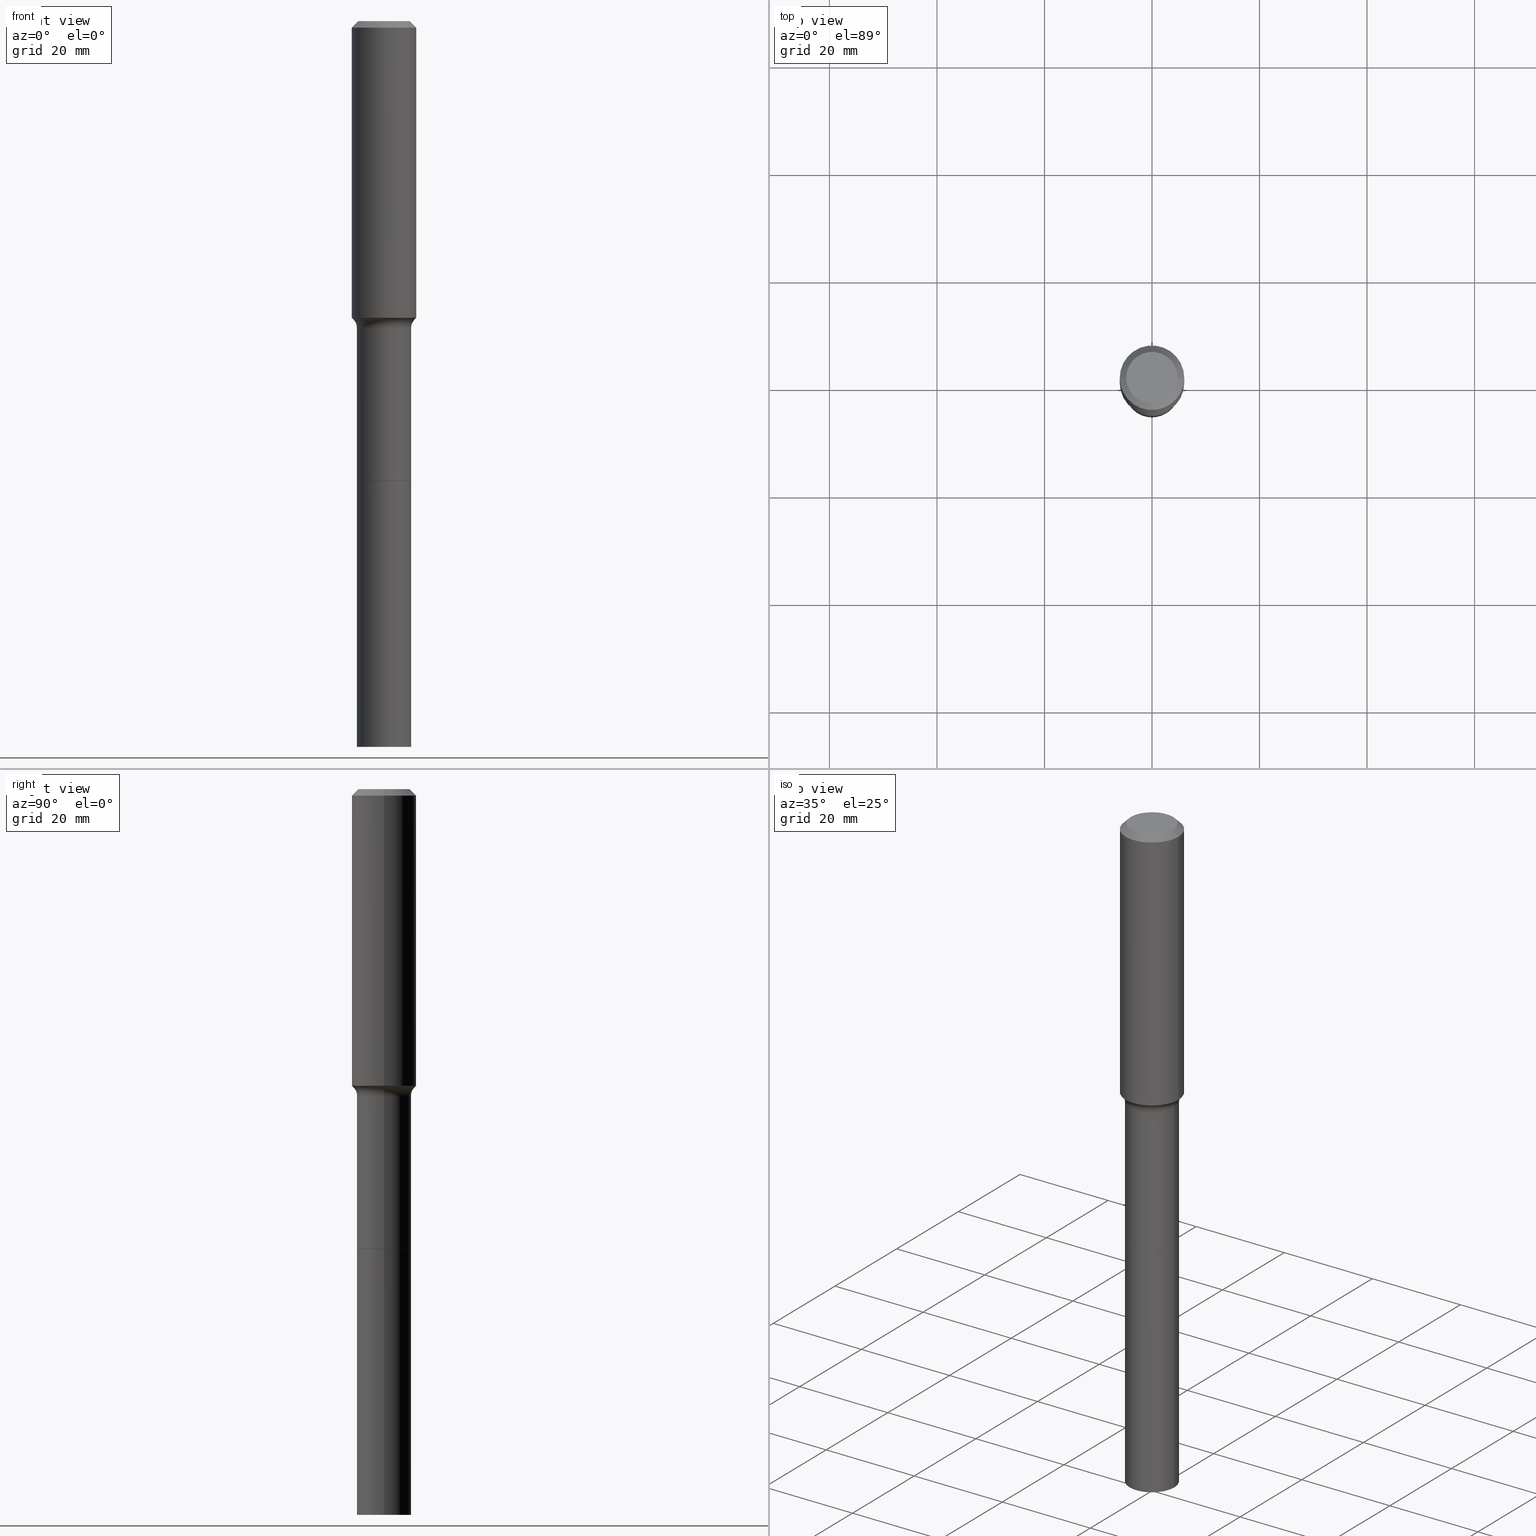
[diagram: canonical four-view strip — front | top / right | iso, engineering-drawing reading convention]
A machine part, canonical four-view strip (front | top / right | iso — engineering-drawing reading convention). The complete STEP part file that produces these views, byte-faithful:
ISO-10303-21;
HEADER;
FILE_DESCRIPTION (( 'STEP AP203' ),
    '1' );
FILE_NAME ('67889.STEP',
    '2025-04-01T15:32:01',
    ( '' ),
    ( '' ),
    'SwSTEP 2.0',
    'SolidWorks 2024',
    '' );
FILE_SCHEMA (( 'CONFIG_CONTROL_DESIGN' ));
ENDSEC;

DATA;
#1 = EDGE_CURVE ( 'NONE', #453, #517, #196, .T. ) ;
#2 = VERTEX_POINT ( 'NONE', #18 ) ;
#3 = AXIS2_PLACEMENT_3D ( 'NONE', #142, #73, #233 ) ;
#4 = AXIS2_PLACEMENT_3D ( 'NONE', #468, #275, #71 ) ;
#5 = ORIENTED_EDGE ( 'NONE', *, *, #1, .T. ) ;
#6 = DIRECTION ( 'NONE',  ( -2.445468806185136597E-29, 3.491481338843145583E-15, 1.000000000000000000 ) ) ;
#7 = VERTEX_POINT ( 'NONE', #296 ) ;
#8 = DIRECTION ( 'NONE',  ( -2.445468806185136597E-29, 3.491481338843145583E-15, 1.000000000000000000 ) ) ;
#9 = DIRECTION ( 'NONE',  ( 1.000000000000000000, -6.982962677686269866E-15, 0.000000000000000000 ) ) ;
#10 = EDGE_LOOP ( 'NONE', ( #52, #518, #363, #323 ) ) ;
#11 = APPROVAL_DATE_TIME ( #167, #202 ) ;
#12 = EDGE_CURVE ( 'NONE', #443, #69, #98, .T. ) ;
#13 = FACE_OUTER_BOUND ( 'NONE', #121, .T. ) ;
#14 = VECTOR ( 'NONE', #498, 39.37007874015748143 ) ;
#15 = ORIENTED_EDGE ( 'NONE', *, *, #111, .T. ) ;
#16 = DIRECTION ( 'NONE',  ( -2.445468806185136597E-29, 3.491481338843145583E-15, 1.000000000000000000 ) ) ;
#17 = ADVANCED_FACE ( 'NONE', ( #336 ), #254, .T. ) ;
#18 = CARTESIAN_POINT ( 'NONE',  ( -0.1983000000000000040, -1.034067071435963894E-14, -3.366000000000000103 ) ) ;
#19 = LINE ( 'NONE', #416, #23 ) ;
#20 = DIRECTION ( 'NONE',  ( 1.000000000000000000, -6.982962677686269077E-15, 0.000000000000000000 ) ) ;
#21 = CC_DESIGN_PERSON_AND_ORGANIZATION_ASSIGNMENT ( #208, #266, ( #119 ) ) ;
#22 = ORIENTED_EDGE ( 'NONE', *, *, #312, .F. ) ;
#23 = VECTOR ( 'NONE', #255, 39.37007874015748143 ) ;
#24 = ORIENTED_EDGE ( 'NONE', *, *, #49, .T. ) ;
#25 = APPROVAL_ROLE ( '' ) ;
#26 = AXIS2_PLACEMENT_3D ( 'NONE', #415, #378, #307 ) ;
#27 = CARTESIAN_POINT ( 'NONE',  ( -0.2202917038704663433, -6.079122661247881296E-15, -2.189440131195000472 ) ) ;
#28 = CARTESIAN_POINT ( 'NONE',  ( 5.487632001079447088E-29, -7.834884124364020406E-15, -2.244000000000000217 ) ) ;
#29 = LENGTH_MEASURE_WITH_UNIT ( LENGTH_MEASURE( 0.02539999999999999897 ), #464 );
#30 = CARTESIAN_POINT ( 'NONE',  ( 8.231448001619171193E-29, -1.175232618654602903E-14, -3.366000000000000103 ) ) ;
#31 = DATE_AND_TIME ( #388, #341 ) ;
#32 = CC_DESIGN_PERSON_AND_ORGANIZATION_ASSIGNMENT ( #346, #66, ( #367 ) ) ;
#33 = CARTESIAN_POINT ( 'NONE',  ( 0.1988000000000000045, -1.388212980324029928E-15, 9.693839430282320098E-30 ) ) ;
#34 = CIRCLE ( 'NONE', #88, 0.08000000000000009881 ) ;
#35 = FACE_OUTER_BOUND ( 'NONE', #132, .T. ) ;
#36 = CONICAL_SURFACE ( 'NONE', #164, 0.2361999999999999933, 0.7853981633974452814 ) ;
#37 = ADVANCED_FACE ( 'NONE', ( #491 ), #229, .F. ) ;
#38 = CARTESIAN_POINT ( 'NONE',  ( 0.1988000000000000878, -1.313879342620063844E-14, -3.365499999999999936 ) ) ;
#39 = CARTESIAN_POINT ( 'NONE',  ( 0.000000000000000000, 0.000000000000000000, 0.000000000000000000 ) ) ;
#40 = FACE_OUTER_BOUND ( 'NONE', #84, .T. ) ;
#41 = VERTEX_POINT ( 'NONE', #263 ) ;
#42 = ORIENTED_EDGE ( 'NONE', *, *, #317, .T. ) ;
#43 = DIRECTION ( 'NONE',  ( 0.000000000000000000, 0.000000000000000000, 1.000000000000000000 ) ) ;
#44 = ORIENTED_EDGE ( 'NONE', *, *, #297, .F. ) ;
#45 = ORIENTED_EDGE ( 'NONE', *, *, #397, .F. ) ;
#46 = CIRCLE ( 'NONE', #301, 0.1987999999999999490 ) ;
#47 = AXIS2_PLACEMENT_3D ( 'NONE', #471, #271, #385 ) ;
#48 = ORIENTED_EDGE ( 'NONE', *, *, #195, .T. ) ;
#49 = EDGE_CURVE ( 'NONE', #126, #245, #221, .T. ) ;
#50 = CALENDAR_DATE ( 2025, 1, 4 ) ;
#51 = CARTESIAN_POINT ( 'NONE',  ( 0.000000000000000000, 0.000000000000000000, 0.000000000000000000 ) ) ;
#52 = ORIENTED_EDGE ( 'NONE', *, *, #329, .T. ) ;
#53 = LINE ( 'NONE', #216, #152 ) ;
#54 = APPROVAL_PERSON_ORGANIZATION ( #444, #202, #411 ) ;
#55 = CARTESIAN_POINT ( 'NONE',  ( 0.2362000000000002709, -9.234202013156812769E-15, -2.172380572195881321 ) ) ;
#56 = CIRCLE ( 'NONE', #458, 0.2361999999999999933 ) ;
#57 = DIRECTION ( 'NONE',  ( 2.445468806185136597E-29, -3.491481338843145583E-15, -1.000000000000000000 ) ) ;
#58 = CARTESIAN_POINT ( 'NONE',  ( 5.354207543847266757E-29, -7.644389360581631556E-15, -2.189440131195000472 ) ) ;
#59 = VERTEX_POINT ( 'NONE', #496 ) ;
#60 = CALENDAR_DATE ( 2025, 1, 4 ) ;
#61 = DIRECTION ( 'NONE',  ( -1.000000000000000000, 6.982962677686266711E-15, 0.000000000000000000 ) ) ;
#62 = PERSON_AND_ORGANIZATION ( #284, #293 ) ;
#63 = DIRECTION ( 'NONE',  ( 1.000000000000000000, -6.982962677686272233E-15, 0.000000000000000000 ) ) ;
#64 = CARTESIAN_POINT ( 'NONE',  ( 1.299766670487400218E-28, -1.855722331595131973E-14, -5.315000000000000391 ) ) ;
#65 = EDGE_CURVE ( 'NONE', #481, #453, #303, .T. ) ;
#66 = PERSON_AND_ORGANIZATION_ROLE ( 'creator' ) ;
#67 = FACE_OUTER_BOUND ( 'NONE', #285, .T. ) ;
#68 = DIRECTION ( 'NONE',  ( -2.445468806185136597E-29, 3.491481338843145583E-15, 1.000000000000000000 ) ) ;
#69 = VERTEX_POINT ( 'NONE', #55 ) ;
#70 =( NAMED_UNIT ( * ) SI_UNIT ( $, .STERADIAN. ) SOLID_ANGLE_UNIT ( ) );
#71 = DIRECTION ( 'NONE',  ( -1.000000000000000000, 6.982962677686265922E-15, -4.876176775795935793E-29 ) ) ;
#72 = DATE_AND_TIME ( #145, #204 ) ;
#73 = DIRECTION ( 'NONE',  ( -2.445468806185136597E-29, 3.491481338843145583E-15, 1.000000000000000000 ) ) ;
#74 = EDGE_CURVE ( 'NONE', #59, #163, #90, .T. ) ;
#75 = FACE_OUTER_BOUND ( 'NONE', #10, .T. ) ;
#76 = AXIS2_PLACEMENT_3D ( 'NONE', #305, #356, #349 ) ;
#77 = VECTOR ( 'NONE', #230, 39.37007874015748143 ) ;
#78 = CC_DESIGN_DATE_AND_TIME_ASSIGNMENT ( #99, #300, ( #119 ) ) ;
#79 = DIRECTION ( 'NONE',  ( 1.000000000000000000, -6.982962677686265133E-15, 0.000000000000000000 ) ) ;
#80 = ORIENTED_EDGE ( 'NONE', *, *, #268, .T. ) ;
#81 = AXIS2_PLACEMENT_3D ( 'NONE', #174, #412, #218 ) ;
#82 = CIRCLE ( 'NONE', #507, 0.1988000000000000045 ) ;
#83 = ORIENTED_EDGE ( 'NONE', *, *, #459, .F. ) ;
#84 = EDGE_LOOP ( 'NONE', ( #201, #22 ) ) ;
#85 = APPROVAL_STATUS ( 'not_yet_approved' ) ;
#86 = ORIENTED_EDGE ( 'NONE', *, *, #89, .F. ) ;
#87 = DIRECTION ( 'NONE',  ( -2.445468806185136597E-29, 3.491481338843145583E-15, 1.000000000000000000 ) ) ;
#88 = AXIS2_PLACEMENT_3D ( 'NONE', #386, #115, #470 ) ;
#89 = EDGE_CURVE ( 'NONE', #446, #245, #211, .T. ) ;
#90 = LINE ( 'NONE', #258, #322 ) ;
#91 = ORIENTED_EDGE ( 'NONE', *, *, #195, .F. ) ;
#92 = CARTESIAN_POINT ( 'NONE',  ( -0.1988000000000000045, -1.374221579255759617E-14, -5.315000000000000391 ) ) ;
#93 = VERTEX_POINT ( 'NONE', #38 ) ;
#94 = DIRECTION ( 'NONE',  ( -2.445468806185136597E-29, 3.491481338843145583E-15, 1.000000000000000000 ) ) ;
#95 = ADVANCED_FACE ( 'NONE', ( #151 ), #206, .T. ) ;
#96 = ORIENTED_EDGE ( 'NONE', *, *, #220, .T. ) ;
#97 = DIRECTION ( 'NONE',  ( 1.000000000000000000, -6.982962677686269077E-15, 0.000000000000000000 ) ) ;
#98 = LINE ( 'NONE', #338, #181 ) ;
#99 = DATE_AND_TIME ( #60, #414 ) ;
#100 = CARTESIAN_POINT ( 'NONE',  ( -0.2202917038704662600, -6.079122661247882874E-15, -2.189440131195000472 ) ) ;
#101 = CARTESIAN_POINT ( 'NONE',  ( -0.2787999999999998813, -5.853890977064861537E-15, -2.244000000000000217 ) ) ;
#102 = DIRECTION ( 'NONE',  ( 1.000000000000000000, -6.982962677686272233E-15, 0.000000000000000000 ) ) ;
#103 = PLANE ( 'NONE',  #374 ) ;
#104 = ADVANCED_FACE ( 'NONE', ( #193 ), #515, .F. ) ;
#105 = DIRECTION ( 'NONE',  ( 2.438088387897960049E-29, -3.491481338843145188E-15, -1.000000000000000000 ) ) ;
#106 = VECTOR ( 'NONE', #380, 39.37007874015748143 ) ;
#107 = AXIS2_PLACEMENT_3D ( 'NONE', #171, #451, #409 ) ;
#108 =( NAMED_UNIT ( * ) PLANE_ANGLE_UNIT ( ) SI_UNIT ( $, .RADIAN. ) );
#109 = DIRECTION ( 'NONE',  ( -2.445468806185136597E-29, 3.491481338843145583E-15, 1.000000000000000000 ) ) ;
#110 = COORDINATED_UNIVERSAL_TIME_OFFSET ( 5, 0, .BEHIND. ) ;
#111 = EDGE_CURVE ( 'NONE', #126, #59, #395, .T. ) ;
#112 = DIRECTION ( 'NONE',  ( 1.000000000000000000, -6.982962677686265922E-15, 4.876176775795935793E-29 ) ) ;
#113 = PERSON_AND_ORGANIZATION ( #284, #293 ) ;
#114 = ADVANCED_FACE ( 'NONE', ( #75 ), #485, .T. ) ;
#115 = DIRECTION ( 'NONE',  ( -6.982962677686266711E-15, -1.000000000000000000, 3.491481338843145583E-15 ) ) ;
#116 = DIRECTION ( 'NONE',  ( -2.445468806185136877E-29, 3.491481338843145188E-15, 1.000000000000000000 ) ) ;
#117 = CC_DESIGN_SECURITY_CLASSIFICATION ( #191, ( #367 ) ) ;
#118 = VERTEX_POINT ( 'NONE', #156 ) ;
#119 = PRODUCT_DEFINITION ( 'UNKNOWN', '', #367, #203 ) ;
#120 = CIRCLE ( 'NONE', #477, 0.2361999999999999933 ) ;
#121 = EDGE_LOOP ( 'NONE', ( #290, #178, #269, #123 ) ) ;
#122 = ADVANCED_FACE ( 'NONE', ( #238 ), #357, .T. ) ;
#123 = ORIENTED_EDGE ( 'NONE', *, *, #159, .F. ) ;
#124 = DIRECTION ( 'NONE',  ( -2.445468806185136597E-29, 3.491481338843145583E-15, 1.000000000000000000 ) ) ;
#125 = DIMENSIONAL_EXPONENTS ( 1.000000000000000000, 0.000000000000000000, 0.000000000000000000, 0.000000000000000000, 0.000000000000000000, 0.000000000000000000, 0.000000000000000000 ) ;
#126 = VERTEX_POINT ( 'NONE', #429 ) ;
#127 = CC_DESIGN_DATE_AND_TIME_ASSIGNMENT ( #72, #428, ( #191 ) ) ;
#128 = ORIENTED_EDGE ( 'NONE', *, *, #474, .F. ) ;
#129 = DIRECTION ( 'NONE',  ( -0.6819983600625021403, 7.399397606724300776E-15, 0.7313537016191671292 ) ) ;
#130 = AXIS2_PLACEMENT_3D ( 'NONE', #274, #316, #143 ) ;
#131 = CIRCLE ( 'NONE', #396, 0.2202917038704662600 ) ;
#132 = EDGE_LOOP ( 'NONE', ( #44, #161, #96, #407 ) ) ;
#133 = CARTESIAN_POINT ( 'NONE',  ( 0.1988000000000000045, -1.994543629627535301E-14, -5.315000000000000391 ) ) ;
#134 = CARTESIAN_POINT ( 'NONE',  ( 1.155239464041865506E-30, -1.649375784469511859E-16, -0.04724000000000028177 ) ) ;
#135 = DIRECTION ( 'NONE',  ( -2.445468806185136597E-29, 3.491481338843145583E-15, 1.000000000000000000 ) ) ;
#136 = ORIENTED_EDGE ( 'NONE', *, *, #312, .T. ) ;
#137 = CYLINDRICAL_SURFACE ( 'NONE', #405, 0.1988000000000000045 ) ;
#138 = DIRECTION ( 'NONE',  ( -2.445468806185136877E-29, 3.491481338843145188E-15, 1.000000000000000000 ) ) ;
#139 = CC_DESIGN_APPROVAL ( #337, ( #367 ) ) ;
#140 = VECTOR ( 'NONE', #192, 39.37007874015748143 ) ;
#141 = ORIENTED_EDGE ( 'NONE', *, *, #159, .T. ) ;
#142 = CARTESIAN_POINT ( 'NONE',  ( 5.354207543847266757E-29, -7.644389360581631556E-15, -2.189440131195000472 ) ) ;
#143 = DIRECTION ( 'NONE',  ( 1.000000000000000000, -6.982962677686266711E-15, 4.876185090822587894E-29 ) ) ;
#144 = ORIENTED_EDGE ( 'NONE', *, *, #12, .T. ) ;
#145 = CALENDAR_DATE ( 2025, 1, 4 ) ;
#146 = LINE ( 'NONE', #187, #438 ) ;
#147 = ADVANCED_FACE ( 'NONE', ( #510 ), #103, .T. ) ;
#148 = DIRECTION ( 'NONE',  ( 1.000000000000000000, -6.982962677686266711E-15, 4.876176775795935793E-29 ) ) ;
#149 =( CONVERSION_BASED_UNIT ( 'INCH', #29 ) LENGTH_UNIT ( ) NAMED_UNIT ( #125 ) );
#150 = CONICAL_SURFACE ( 'NONE', #3, 0.2202917038704662600, 0.7504915783575666355 ) ;
#151 = FACE_OUTER_BOUND ( 'NONE', #261, .T. ) ;
#152 = VECTOR ( 'NONE', #138, 39.37007874015748143 ) ;
#153 = CARTESIAN_POINT ( 'NONE',  ( 5.487632001079447088E-29, -7.834884124364020406E-15, -2.244000000000000217 ) ) ;
#154 = CARTESIAN_POINT ( 'NONE',  ( 8.231448001619171193E-29, -1.175232618654602903E-14, -3.366000000000000103 ) ) ;
#155 = DIRECTION ( 'NONE',  ( 1.000000000000000000, -6.982962677686269077E-15, 0.000000000000000000 ) ) ;
#156 = CARTESIAN_POINT ( 'NONE',  ( 0.1983000000000000040, -1.313704768553121615E-14, -3.366000000000000103 ) ) ;
#157 = APPLICATION_CONTEXT ( 'configuration controlled 3d designs of mechanical parts and assemblies' ) ;
#158 = CC_DESIGN_APPROVAL ( #202, ( #119 ) ) ;
#159 = EDGE_CURVE ( 'NONE', #69, #163, #350, .T. ) ;
#160 = ORIENTED_EDGE ( 'NONE', *, *, #512, .F. ) ;
#161 = ORIENTED_EDGE ( 'NONE', *, *, #512, .T. ) ;
#162 = CIRCLE ( 'NONE', #424, 0.1889600000000000168 ) ;
#163 = VERTEX_POINT ( 'NONE', #435 ) ;
#164 = AXIS2_PLACEMENT_3D ( 'NONE', #310, #306, #280 ) ;
#165 = ADVANCED_FACE ( 'NONE', ( #469 ), #36, .T. ) ;
#166 = EDGE_LOOP ( 'NONE', ( #86, #331, #141, #91 ) ) ;
#167 = DATE_AND_TIME ( #50, #352 ) ;
#168 = DIRECTION ( 'NONE',  ( 1.000000000000000000, -6.982962677686272233E-15, 0.000000000000000000 ) ) ;
#169 = VERTEX_POINT ( 'NONE', #313 ) ;
#170 = DIRECTION ( 'NONE',  ( 1.000000000000000000, -6.982962677686272233E-15, 0.000000000000000000 ) ) ;
#171 = CARTESIAN_POINT ( 'NONE',  ( 8.231448001619171193E-29, -1.175232618654602903E-14, -3.366000000000000103 ) ) ;
#172 = ORIENTED_EDGE ( 'NONE', *, *, #474, .T. ) ;
#173 = CIRCLE ( 'NONE', #295, 0.2202917038704662600 ) ;
#174 = CARTESIAN_POINT ( 'NONE',  ( 5.487632001079447088E-29, -7.834884124364020406E-15, -2.244000000000000217 ) ) ;
#175 = DIRECTION ( 'NONE',  ( -2.445468806185136597E-29, 3.491481338843145583E-15, 1.000000000000000000 ) ) ;
#176 = ORIENTED_EDGE ( 'NONE', *, *, #488, .F. ) ;
#177 = LINE ( 'NONE', #100, #237 ) ;
#178 = ORIENTED_EDGE ( 'NONE', *, *, #89, .T. ) ;
#179 = CARTESIAN_POINT ( 'NONE',  ( -0.2362000000000002709, -5.906524286821956695E-15, -2.172380572195881321 ) ) ;
#180 = CIRCLE ( 'NONE', #473, 0.1988000000000000045 ) ;
#181 = VECTOR ( 'NONE', #304, 39.37007874015748143 ) ;
#182 = EDGE_CURVE ( 'NONE', #330, #41, #242, .T. ) ;
#183 = EDGE_LOOP ( 'NONE', ( #259, #324, #205, #420 ) ) ;
#184 = MANIFOLD_SOLID_BREP ( 'Body-Move/Copy2[2]', #327 ) ;
#185 = DIRECTION ( 'NONE',  ( 1.000000000000000000, -6.982962677686269077E-15, 0.000000000000000000 ) ) ;
#186 = DIRECTION ( 'NONE',  ( 1.000000000000000000, -6.982962677686269077E-15, 4.883557194083114022E-29 ) ) ;
#187 = CARTESIAN_POINT ( 'NONE',  ( -0.1988000000000000045, -1.033976722785494924E-14, -3.366000000000000103 ) ) ;
#188 = DIRECTION ( 'NONE',  ( -2.438088387897960049E-29, 3.491481338843145188E-15, 1.000000000000000000 ) ) ;
#189 = APPROVAL_DATE_TIME ( #31, #376 ) ;
#190 = DIRECTION ( 'NONE',  ( 1.000000000000000000, -6.982962677686266711E-15, 0.000000000000000000 ) ) ;
#191 = SECURITY_CLASSIFICATION ( '', '', #511 ) ;
#192 = DIRECTION ( 'NONE',  ( -2.445468806185136877E-29, 3.491481338843145188E-15, 1.000000000000000000 ) ) ;
#193 = FACE_OUTER_BOUND ( 'NONE', #475, .T. ) ;
#194 = APPROVAL_ROLE ( '' ) ;
#195 = EDGE_CURVE ( 'NONE', #245, #163, #56, .T. ) ;
#196 = CIRCLE ( 'NONE', #81, 0.1987999999999999490 ) ;
#197 = ORIENTED_EDGE ( 'NONE', *, *, #404, .T. ) ;
#198 = CONICAL_SURFACE ( 'NONE', #247, 0.2202917038704662600, 0.7504915783575666355 ) ;
#199 = ORIENTED_EDGE ( 'NONE', *, *, #332, .F. ) ;
#200 = ADVANCED_FACE ( 'NONE', ( #40 ), #344, .F. ) ;
#201 = ORIENTED_EDGE ( 'NONE', *, *, #329, .F. ) ;
#202 = APPROVAL ( #85, 'UNSPECIFIED' ) ;
#203 = DESIGN_CONTEXT ( 'detailed design', #157, 'design' ) ;
#204 = LOCAL_TIME ( 11, 32, 1.000000000000000000, #421 ) ;
#205 = ORIENTED_EDGE ( 'NONE', *, *, #503, .F. ) ;
#206 = CONICAL_SURFACE ( 'NONE', #47, 0.1983000000000000040, 0.7853981633973459164 ) ;
#207 = ORIENTED_EDGE ( 'NONE', *, *, #268, .F. ) ;
#208 = PERSON_AND_ORGANIZATION ( #284, #293 ) ;
#209 = CYLINDRICAL_SURFACE ( 'NONE', #252, 0.1988000000000000045 ) ;
#210 = CARTESIAN_POINT ( 'NONE',  ( 1.299766670487400218E-28, -1.855722331595131973E-14, -5.315000000000000391 ) ) ;
#211 = LINE ( 'NONE', #426, #14 ) ;
#212 = EDGE_LOOP ( 'NONE', ( #199, #398 ) ) ;
#213 = ADVANCED_FACE ( 'NONE', ( #423 ), #504, .F. ) ;
#214 = AXIS2_PLACEMENT_3D ( 'NONE', #390, #422, #63 ) ;
#215 = VECTOR ( 'NONE', #116, 39.37007874015748143 ) ;
#216 = CARTESIAN_POINT ( 'NONE',  ( -0.1988000000000000045, 1.412558958691079201E-15, -9.778842959426753228E-30 ) ) ;
#217 = AXIS2_PLACEMENT_3D ( 'NONE', #223, #379, #343 ) ;
#218 = DIRECTION ( 'NONE',  ( 1.000000000000000000, -6.982962677686269077E-15, 0.000000000000000000 ) ) ;
#219 = FACE_OUTER_BOUND ( 'NONE', #328, .T. ) ;
#220 = EDGE_CURVE ( 'NONE', #93, #517, #392, .T. ) ;
#221 = LINE ( 'NONE', #265, #106 ) ;
#222 = DIRECTION ( 'NONE',  ( -2.445468806185136597E-29, 3.491481338843145583E-15, 1.000000000000000000 ) ) ;
#223 = CARTESIAN_POINT ( 'NONE',  ( 0.000000000000000000, 0.000000000000000000, 0.000000000000000000 ) ) ;
#224 = CC_DESIGN_PERSON_AND_ORGANIZATION_ASSIGNMENT ( #320, #472, ( #445 ) ) ;
#225 = DIRECTION ( 'NONE',  ( 7.105427357601001859E-15, 1.000000000000000000, -3.491481338843145583E-15 ) ) ;
#226 = APPROVAL_STATUS ( 'not_yet_approved' ) ;
#227 = DIRECTION ( 'NONE',  ( 1.000000000000000000, -6.982962677686269077E-15, 0.000000000000000000 ) ) ;
#228 = APPROVAL_PERSON_ORGANIZATION ( #457, #337, #194 ) ;
#229 = TOROIDAL_SURFACE ( 'NONE', #26, 0.2787999999999998813, 0.08000000000000007105 ) ;
#230 = DIRECTION ( 'NONE',  ( -2.445468806185136877E-29, 3.491481338843145188E-15, 1.000000000000000000 ) ) ;
#231 = CARTESIAN_POINT ( 'NONE',  ( 0.1987999999999999490, -9.223097104688050531E-15, -2.244000000000000217 ) ) ;
#232 = CARTESIAN_POINT ( 'NONE',  ( 0.1988000000000000045, -1.314053916687006073E-14, -3.366000000000000103 ) ) ;
#233 = DIRECTION ( 'NONE',  ( 1.000000000000000000, -6.982962677686269866E-15, 0.000000000000000000 ) ) ;
#234 = CARTESIAN_POINT ( 'NONE',  ( 0.2362000000000001321, -1.649375784469497117E-15, 1.151752954443000789E-29 ) ) ;
#235 = PERSON_AND_ORGANIZATION_ROLE ( 'classification_officer' ) ;
#236 = CARTESIAN_POINT ( 'NONE',  ( 0.2202917038704663433, -9.182678106913014415E-15, -2.189440131195000472 ) ) ;
#237 = VECTOR ( 'NONE', #129, 39.37007874015748143 ) ;
#238 = FACE_OUTER_BOUND ( 'NONE', #183, .T. ) ;
#239 = AXIS2_PLACEMENT_3D ( 'NONE', #30, #188, #112 ) ;
#240 = APPROVAL_STATUS ( 'not_yet_approved' ) ;
#241 = DIRECTION ( 'NONE',  ( 1.000000000000000000, -6.982962677686269866E-15, 0.000000000000000000 ) ) ;
#242 = LINE ( 'NONE', #232, #77 ) ;
#243 = ADVANCED_FACE ( 'NONE', ( #354 ), #508, .F. ) ;
#244 = AXIS2_PLACEMENT_3D ( 'NONE', #134, #57, #61 ) ;
#245 = VERTEX_POINT ( 'NONE', #483 ) ;
#246 = PRODUCT_DEFINITION_SHAPE ( 'NONE', 'NONE',  #119 ) ;
#247 = AXIS2_PLACEMENT_3D ( 'NONE', #58, #135, #9 ) ;
#248 = EDGE_LOOP ( 'NONE', ( #15, #289 ) ) ;
#249 = PRODUCT_RELATED_PRODUCT_CATEGORY ( 'detail', '', ( #445 ) ) ;
#250 = ORIENTED_EDGE ( 'NONE', *, *, #74, .T. ) ;
#251 = DIRECTION ( 'NONE',  ( 1.000000000000000000, -6.982962677686265133E-15, 0.000000000000000000 ) ) ;
#252 = AXIS2_PLACEMENT_3D ( 'NONE', #372, #8, #408 ) ;
#253 = ORIENTED_EDGE ( 'NONE', *, *, #74, .F. ) ;
#254 = CONICAL_SURFACE ( 'NONE', #244, 0.2361999999999999933, 0.7853981633974452814 ) ;
#255 = DIRECTION ( 'NONE',  ( -0.7071067811864750752, 7.493145998870092258E-15, 0.7071067811866199593 ) ) ;
#256 = DIRECTION ( 'NONE',  ( 1.000000000000000000, -6.982962677686269866E-15, 0.000000000000000000 ) ) ;
#257 = ADVANCED_FACE ( 'NONE', ( #283 ), #198, .T. ) ;
#258 = CARTESIAN_POINT ( 'NONE',  ( 0.2361999999999999933, -1.785387205520586782E-15, -0.04724000000000028177 ) ) ;
#259 = ORIENTED_EDGE ( 'NONE', *, *, #264, .T. ) ;
#260 = ADVANCED_FACE ( 'NONE', ( #454 ), #419, .T. ) ;
#261 = EDGE_LOOP ( 'NONE', ( #437, #136, #42, #160 ) ) ;
#262 = DIRECTION ( 'NONE',  ( -2.445468806185136597E-29, 3.491481338843145583E-15, 1.000000000000000000 ) ) ;
#263 = CARTESIAN_POINT ( 'NONE',  ( 0.1988000000000000045, -1.314053916687006073E-14, -3.366000000000000103 ) ) ;
#264 = EDGE_CURVE ( 'NONE', #93, #7, #362, .T. ) ;
#265 = CARTESIAN_POINT ( 'NONE',  ( -0.2361999999999999933, 1.484438206022545019E-15, -0.04724000000000028177 ) ) ;
#266 = PERSON_AND_ORGANIZATION_ROLE ( 'creator' ) ;
#267 = DIRECTION ( 'NONE',  ( 0.7071067811864750752, -2.468850131081498176E-15, 0.7071067811866199593 ) ) ;
#268 = EDGE_CURVE ( 'NONE', #481, #443, #131, .T. ) ;
#269 = ORIENTED_EDGE ( 'NONE', *, *, #404, .F. ) ;
#270 = PERSON_AND_ORGANIZATION ( #284, #293 ) ;
#271 = DIRECTION ( 'NONE',  ( -2.445468806185136597E-29, 3.491481338843145583E-15, 1.000000000000000000 ) ) ;
#272 = CARTESIAN_POINT ( 'NONE',  ( 1.155239464041865506E-30, -1.649375784469511859E-16, -0.04724000000000028177 ) ) ;
#273 = AXIS2_PLACEMENT_3D ( 'NONE', #51, #262, #413 ) ;
#274 = CARTESIAN_POINT ( 'NONE',  ( -9.427742298522546243E-47, 1.346031739168365344E-32, 3.855188123715862256E-18 ) ) ;
#275 = DIRECTION ( 'NONE',  ( 2.438088387897960049E-29, -3.491481338843145188E-15, -1.000000000000000000 ) ) ;
#276 = APPLICATION_CONTEXT ( 'configuration controlled 3d designs of mechanical parts and assemblies' ) ;
#277 = APPROVAL_DATE_TIME ( #465, #337 ) ;
#278 = DIRECTION ( 'NONE',  ( -2.445468806185136597E-29, 3.491481338843145583E-15, 1.000000000000000000 ) ) ;
#279 = APPROVAL_PERSON_ORGANIZATION ( #62, #376, #25 ) ;
#280 = DIRECTION ( 'NONE',  ( -1.000000000000000000, 6.982962677686266711E-15, 0.000000000000000000 ) ) ;
#281 = APPLICATION_PROTOCOL_DEFINITION ( 'international standard', 'config_control_design', 1994, #157 ) ;
#282 = EDGE_CURVE ( 'NONE', #41, #169, #440, .T. ) ;
#283 = FACE_OUTER_BOUND ( 'NONE', #463, .T. ) ;
#284 = PERSON ( 'UNSPECIFIED', 'UNSPECIFIED', 'UNSPECIFIED', ('UNSPECIFIED'), ('UNSPECIFIED'), ('UNSPECIFIED') ) ;
#285 = EDGE_LOOP ( 'NONE', ( #402, #389, #373, #442 ) ) ;
#286 = AXIS2_PLACEMENT_3D ( 'NONE', #509, #460, #155 ) ;
#287 = ADVANCED_FACE ( 'NONE', ( #13 ), #493, .T. ) ;
#288 = EDGE_LOOP ( 'NONE', ( #369, #250, #197, #449 ) ) ;
#289 = ORIENTED_EDGE ( 'NONE', *, *, #513, .T. ) ;
#290 = ORIENTED_EDGE ( 'NONE', *, *, #353, .T. ) ;
#291 = DIRECTION ( 'NONE',  ( -2.445468806185136597E-29, 3.491481338843145583E-15, 1.000000000000000000 ) ) ;
#292 = CARTESIAN_POINT ( 'NONE',  ( 5.354207543847266757E-29, -7.644389360581631556E-15, -2.189440131195000472 ) ) ;
#293 = ORGANIZATION ( 'UNSPECIFIED', 'UNSPECIFIED', '' ) ;
#294 = ORIENTED_EDGE ( 'NONE', *, *, #111, .F. ) ;
#295 = AXIS2_PLACEMENT_3D ( 'NONE', #377, #175, #241 ) ;
#296 = CARTESIAN_POINT ( 'NONE',  ( -0.1988000000000001155, -8.380173326429232201E-15, -3.365499999999999936 ) ) ;
#297 = EDGE_CURVE ( 'NONE', #7, #453, #53, .T. ) ;
#298 = CARTESIAN_POINT ( 'NONE',  ( 0.1983000000000000040, -1.313704768553121615E-14, -3.366000000000000103 ) ) ;
#299 = ORIENTED_EDGE ( 'NONE', *, *, #282, .T. ) ;
#300 = DATE_TIME_ROLE ( 'creation_date' ) ;
#301 = AXIS2_PLACEMENT_3D ( 'NONE', #153, #432, #227 ) ;
#302 = CARTESIAN_POINT ( 'NONE',  ( 8.231448001619171193E-29, -1.175232618654602903E-14, -3.366000000000000103 ) ) ;
#303 = CIRCLE ( 'NONE', #466, 0.08000000000000009881 ) ;
#304 = DIRECTION ( 'NONE',  ( 0.6819983600625021403, -2.208861293262512879E-15, 0.7313537016191671292 ) ) ;
#305 = CARTESIAN_POINT ( 'NONE',  ( 0.000000000000000000, 0.000000000000000000, 0.000000000000000000 ) ) ;
#306 = DIRECTION ( 'NONE',  ( 2.445468806185136597E-29, -3.491481338843145583E-15, -1.000000000000000000 ) ) ;
#307 = DIRECTION ( 'NONE',  ( 1.000000000000000000, -6.982962677686269077E-15, 4.883557194083114022E-29 ) ) ;
#308 = SHAPE_DEFINITION_REPRESENTATION ( #246, #351 ) ;
#309 = EDGE_CURVE ( 'NONE', #443, #481, #173, .T. ) ;
#310 = CARTESIAN_POINT ( 'NONE',  ( 1.155239464041865506E-30, -1.649375784469511859E-16, -0.04724000000000028177 ) ) ;
#311 = CC_DESIGN_APPROVAL ( #376, ( #191 ) ) ;
#312 = EDGE_CURVE ( 'NONE', #2, #118, #486, .T. ) ;
#313 = CARTESIAN_POINT ( 'NONE',  ( -0.1988000000000000045, -1.374221579255759617E-14, -3.366000000000000103 ) ) ;
#314 = AXIS2_PLACEMENT_3D ( 'NONE', #455, #447, #482 ) ;
#315 = CARTESIAN_POINT ( 'NONE',  ( 8.230225267216076149E-29, -1.175058044587660674E-14, -3.365499999999999936 ) ) ;
#316 = DIRECTION ( 'NONE',  ( -2.445468806185136597E-29, 3.491481338843145583E-15, 1.000000000000000000 ) ) ;
#317 = EDGE_CURVE ( 'NONE', #118, #93, #450, .T. ) ;
#318 = CARTESIAN_POINT ( 'NONE',  ( 8.231448001619171193E-29, -1.175232618654602903E-14, -3.366000000000000103 ) ) ;
#319 = CC_DESIGN_PERSON_AND_ORGANIZATION_ASSIGNMENT ( #270, #235, ( #191 ) ) ;
#320 = PERSON_AND_ORGANIZATION ( #284, #293 ) ;
#321 = CIRCLE ( 'NONE', #286, 0.2362000000000002709 ) ;
#322 = VECTOR ( 'NONE', #484, 39.37007874015748143 ) ;
#323 = ORIENTED_EDGE ( 'NONE', *, *, #317, .F. ) ;
#324 = ORIENTED_EDGE ( 'NONE', *, *, #297, .T. ) ;
#325 = MECHANICAL_CONTEXT ( 'NONE', #276, 'mechanical' ) ;
#326 = AXIS2_PLACEMENT_3D ( 'NONE', #315, #502, #185 ) ;
#327 = CLOSED_SHELL ( 'NONE', ( #114, #165, #287, #430, #37, #122, #452, #104, #257, #260, #17, #213, #200, #95 ) ) ;
#328 = EDGE_LOOP ( 'NONE', ( #345, #476, #371, #366 ) ) ;
#329 = EDGE_CURVE ( 'NONE', #118, #2, #335, .T. ) ;
#330 = VERTEX_POINT ( 'NONE', #133 ) ;
#331 = ORIENTED_EDGE ( 'NONE', *, *, #459, .T. ) ;
#332 = EDGE_CURVE ( 'NONE', #330, #340, #82, .T. ) ;
#333 = CARTESIAN_POINT ( 'NONE',  ( 5.312488924467646188E-29, -7.584826228687314666E-15, -2.172380572195881321 ) ) ;
#334 = AXIS2_PLACEMENT_3D ( 'NONE', #318, #462, #79 ) ;
#335 = CIRCLE ( 'NONE', #314, 0.1983000000000000040 ) ;
#336 = FACE_OUTER_BOUND ( 'NONE', #410, .T. ) ;
#337 = APPROVAL ( #240, 'UNSPECIFIED' ) ;
#338 = CARTESIAN_POINT ( 'NONE',  ( 0.2202917038704662600, -9.182678106913014415E-15, -2.189440131195000472 ) ) ;
#339 = FACE_OUTER_BOUND ( 'NONE', #399, .T. ) ;
#340 = VERTEX_POINT ( 'NONE', #92 ) ;
#341 = LOCAL_TIME ( 11, 32, 1.000000000000000000, #110 ) ;
#342 = CYLINDRICAL_SURFACE ( 'NONE', #76, 0.1988000000000000045 ) ;
#343 = DIRECTION ( 'NONE',  ( 1.000000000000000000, -6.982962677686266711E-15, 4.876176775795936353E-29 ) ) ;
#344 = PLANE ( 'NONE',  #239 ) ;
#345 = ORIENTED_EDGE ( 'NONE', *, *, #332, .T. ) ;
#346 = PERSON_AND_ORGANIZATION ( #284, #293 ) ;
#347 = CARTESIAN_POINT ( 'NONE',  ( -9.427742298522546243E-47, 1.346031739168365344E-32, 3.855188123715862256E-18 ) ) ;
#348 = CARTESIAN_POINT ( 'NONE',  ( 0.000000000000000000, 0.000000000000000000, 0.000000000000000000 ) ) ;
#349 = DIRECTION ( 'NONE',  ( 1.000000000000000000, -6.982962677686266711E-15, 4.876176775795935793E-29 ) ) ;
#350 = LINE ( 'NONE', #234, #215 ) ;
#351 = ADVANCED_BREP_SHAPE_REPRESENTATION ( '67889', ( #427, #184, #506 ), #514 ) ;
#352 = LOCAL_TIME ( 11, 32, 1.000000000000000000, #403 ) ;
#353 = EDGE_CURVE ( 'NONE', #69, #446, #516, .T. ) ;
#354 = FACE_OUTER_BOUND ( 'NONE', #499, .T. ) ;
#355 = COORDINATED_UNIVERSAL_TIME_OFFSET ( 5, 0, .BEHIND. ) ;
#356 = DIRECTION ( 'NONE',  ( -2.445468806185136597E-29, 3.491481338843145583E-15, 1.000000000000000000 ) ) ;
#357 = CYLINDRICAL_SURFACE ( 'NONE', #439, 0.1988000000000000045 ) ;
#358 = ADVANCED_FACE ( 'NONE', ( #219 ), #209, .T. ) ;
#359 = CALENDAR_DATE ( 2025, 1, 4 ) ;
#360 = ORIENTED_EDGE ( 'NONE', *, *, #309, .F. ) ;
#361 = CIRCLE ( 'NONE', #326, 0.1988000000000000878 ) ;
#362 = CIRCLE ( 'NONE', #425, 0.1988000000000000878 ) ;
#363 = ORIENTED_EDGE ( 'NONE', *, *, #264, .F. ) ;
#364 = ORIENTED_EDGE ( 'NONE', *, *, #503, .T. ) ;
#365 = DIRECTION ( 'NONE',  ( 1.000000000000000000, 0.000000000000000000, 0.000000000000000000 ) ) ;
#366 = ORIENTED_EDGE ( 'NONE', *, *, #182, .F. ) ;
#367 = PRODUCT_DEFINITION_FORMATION_WITH_SPECIFIED_SOURCE ( 'ANY', '', #445, .NOT_KNOWN. ) ;
#368 = AXIS2_PLACEMENT_3D ( 'NONE', #28, #109, #186 ) ;
#369 = ORIENTED_EDGE ( 'NONE', *, *, #513, .F. ) ;
#370 = ORIENTED_EDGE ( 'NONE', *, *, #182, .T. ) ;
#371 = ORIENTED_EDGE ( 'NONE', *, *, #282, .F. ) ;
#372 = CARTESIAN_POINT ( 'NONE',  ( 8.231448001619171193E-29, -1.175232618654602903E-14, -3.366000000000000103 ) ) ;
#373 = ORIENTED_EDGE ( 'NONE', *, *, #353, .F. ) ;
#374 = AXIS2_PLACEMENT_3D ( 'NONE', #64, #105, #501 ) ;
#375 = AXIS2_PLACEMENT_3D ( 'NONE', #461, #124, #251 ) ;
#376 = APPROVAL ( #226, 'UNSPECIFIED' ) ;
#377 = CARTESIAN_POINT ( 'NONE',  ( 5.354207543847266757E-29, -7.644389360581631556E-15, -2.189440131195000472 ) ) ;
#378 = DIRECTION ( 'NONE',  ( -2.445468806185136597E-29, 3.491481338843145583E-15, 1.000000000000000000 ) ) ;
#379 = DIRECTION ( 'NONE',  ( -2.445468806185136597E-29, 3.491481338843145583E-15, 1.000000000000000000 ) ) ;
#380 = DIRECTION ( 'NONE',  ( -0.7071067811865453523, 2.468850131082234184E-15, -0.7071067811865496822 ) ) ;
#381 = DIRECTION ( 'NONE',  ( 1.000000000000000000, -6.982962677686266711E-15, 4.876185090822587894E-29 ) ) ;
#382 = DIRECTION ( 'NONE',  ( -1.000000000000000000, 7.105427357601001859E-15, 0.000000000000000000 ) ) ;
#383 = CIRCLE ( 'NONE', #214, 0.1988000000000000045 ) ;
#384 = CARTESIAN_POINT ( 'NONE',  ( 8.231448001619171193E-29, -1.175232618654602903E-14, -3.366000000000000103 ) ) ;
#385 = DIRECTION ( 'NONE',  ( 1.000000000000000000, -6.982962677686265133E-15, 0.000000000000000000 ) ) ;
#386 = CARTESIAN_POINT ( 'NONE',  ( 0.2787999999999998813, -9.781734118902950605E-15, -2.244000000000000217 ) ) ;
#387 = DIRECTION ( 'NONE',  ( 1.000000000000000000, -6.982962677686266711E-15, 0.000000000000000000 ) ) ;
#388 = CALENDAR_DATE ( 2025, 1, 4 ) ;
#389 = ORIENTED_EDGE ( 'NONE', *, *, #397, .T. ) ;
#390 = CARTESIAN_POINT ( 'NONE',  ( 1.299766670487400218E-28, -1.855722331595131973E-14, -5.315000000000000391 ) ) ;
#391 = EDGE_CURVE ( 'NONE', #2, #7, #19, .T. ) ;
#392 = LINE ( 'NONE', #33, #140 ) ;
#393 = DIRECTION ( 'NONE',  ( -2.445468806185136877E-29, 3.491481338843145188E-15, 1.000000000000000000 ) ) ;
#394 = DIRECTION ( 'NONE',  ( -2.445468806185136597E-29, 3.491481338843145583E-15, 1.000000000000000000 ) ) ;
#395 = CIRCLE ( 'NONE', #130, 0.1889600000000000168 ) ;
#396 = AXIS2_PLACEMENT_3D ( 'NONE', #292, #448, #256 ) ;
#397 = EDGE_CURVE ( 'NONE', #481, #446, #177, .T. ) ;
#398 = ORIENTED_EDGE ( 'NONE', *, *, #490, .F. ) ;
#399 = EDGE_LOOP ( 'NONE', ( #478, #417, #370, #176 ) ) ;
#400 = ADVANCED_FACE ( 'NONE', ( #339 ), #137, .T. ) ;
#401 = UNCERTAINTY_MEASURE_WITH_UNIT (LENGTH_MEASURE( 1.000000000000000082E-05 ), #149, 'distance_accuracy_value', 'NONE');
#402 = ORIENTED_EDGE ( 'NONE', *, *, #309, .T. ) ;
#403 = COORDINATED_UNIVERSAL_TIME_OFFSET ( 5, 0, .BEHIND. ) ;
#404 = EDGE_CURVE ( 'NONE', #163, #245, #120, .T. ) ;
#405 = AXIS2_PLACEMENT_3D ( 'NONE', #302, #6, #168 ) ;
#406 = CLOSED_SHELL ( 'NONE', ( #358, #147, #400, #243 ) ) ;
#407 = ORIENTED_EDGE ( 'NONE', *, *, #1, .F. ) ;
#408 = DIRECTION ( 'NONE',  ( 1.000000000000000000, -6.982962677686272233E-15, 0.000000000000000000 ) ) ;
#409 = DIRECTION ( 'NONE',  ( 1.000000000000000000, -6.982962677686272233E-15, 0.000000000000000000 ) ) ;
#410 = EDGE_LOOP ( 'NONE', ( #253, #294, #24, #48 ) ) ;
#411 = APPROVAL_ROLE ( '' ) ;
#412 = DIRECTION ( 'NONE',  ( -2.445468806185136597E-29, 3.491481338843145583E-15, 1.000000000000000000 ) ) ;
#413 = DIRECTION ( 'NONE',  ( 1.000000000000000000, -6.982962677686266711E-15, 4.876176775795936353E-29 ) ) ;
#414 = LOCAL_TIME ( 11, 32, 1.000000000000000000, #418 ) ;
#415 = CARTESIAN_POINT ( 'NONE',  ( 5.487632001079447088E-29, -7.834884124364020406E-15, -2.244000000000000217 ) ) ;
#416 = CARTESIAN_POINT ( 'NONE',  ( -0.1983000000000000040, -1.034331994153375092E-14, -3.366000000000000103 ) ) ;
#417 = ORIENTED_EDGE ( 'NONE', *, *, #490, .T. ) ;
#418 = COORDINATED_UNIVERSAL_TIME_OFFSET ( 5, 0, .BEHIND. ) ;
#419 = CYLINDRICAL_SURFACE ( 'NONE', #217, 0.2362000000000001321 ) ;
#420 = ORIENTED_EDGE ( 'NONE', *, *, #220, .F. ) ;
#421 = COORDINATED_UNIVERSAL_TIME_OFFSET ( 5, 0, .BEHIND. ) ;
#422 = DIRECTION ( 'NONE',  ( -2.445468806185136597E-29, 3.491481338843145583E-15, 1.000000000000000000 ) ) ;
#423 = FACE_OUTER_BOUND ( 'NONE', #248, .T. ) ;
#424 = AXIS2_PLACEMENT_3D ( 'NONE', #347, #222, #381 ) ;
#425 = AXIS2_PLACEMENT_3D ( 'NONE', #497, #94, #20 ) ;
#426 = CARTESIAN_POINT ( 'NONE',  ( -0.2362000000000001321, 1.678301941865357577E-15, -1.161852468318209457E-29 ) ) ;
#427 = MANIFOLD_SOLID_BREP ( 'Body-Move/Copy2[1]', #406 ) ;
#428 = DATE_TIME_ROLE ( 'classification_date' ) ;
#429 = CARTESIAN_POINT ( 'NONE',  ( -0.1889600000000000168, 1.401969416799070942E-15, 3.855188123706346622E-18 ) ) ;
#430 = ADVANCED_FACE ( 'NONE', ( #67 ), #150, .T. ) ;
#431 = DIRECTION ( 'NONE',  ( 2.438088387897960049E-29, -3.491481338843145188E-15, -1.000000000000000000 ) ) ;
#432 = DIRECTION ( 'NONE',  ( -2.445468806185136597E-29, 3.491481338843145583E-15, 1.000000000000000000 ) ) ;
#433 = LOCAL_TIME ( 11, 32, 1.000000000000000000, #355 ) ;
#434 = AXIS2_PLACEMENT_3D ( 'NONE', #154, #431, #492 ) ;
#435 = CARTESIAN_POINT ( 'NONE',  ( 0.2361999999999999933, -1.814313362916447440E-15, -0.04724000000000028177 ) ) ;
#436 = APPLICATION_PROTOCOL_DEFINITION ( 'international standard', 'config_control_design', 1994, #276 ) ;
#437 = ORIENTED_EDGE ( 'NONE', *, *, #391, .F. ) ;
#438 = VECTOR ( 'NONE', #393, 39.37007874015748143 ) ;
#439 = AXIS2_PLACEMENT_3D ( 'NONE', #348, #394, #148 ) ;
#440 = CIRCLE ( 'NONE', #107, 0.1988000000000000045 ) ;
#441 = EDGE_CURVE ( 'NONE', #340, #169, #146, .T. ) ;
#442 = ORIENTED_EDGE ( 'NONE', *, *, #12, .F. ) ;
#443 = VERTEX_POINT ( 'NONE', #236 ) ;
#444 = PERSON_AND_ORGANIZATION ( #284, #293 ) ;
#445 = PRODUCT ( '67889', '67889', '', ( #325 ) ) ;
#446 = VERTEX_POINT ( 'NONE', #179 ) ;
#447 = DIRECTION ( 'NONE',  ( -2.445468806185136597E-29, 3.491481338843145583E-15, 1.000000000000000000 ) ) ;
#448 = DIRECTION ( 'NONE',  ( -2.445468806185136597E-29, 3.491481338843145583E-15, 1.000000000000000000 ) ) ;
#449 = ORIENTED_EDGE ( 'NONE', *, *, #49, .F. ) ;
#450 = LINE ( 'NONE', #298, #467 ) ;
#451 = DIRECTION ( 'NONE',  ( -2.445468806185136597E-29, 3.491481338843145583E-15, 1.000000000000000000 ) ) ;
#452 = ADVANCED_FACE ( 'NONE', ( #35 ), #342, .T. ) ;
#453 = VERTEX_POINT ( 'NONE', #500 ) ;
#454 = FACE_OUTER_BOUND ( 'NONE', #166, .T. ) ;
#455 = CARTESIAN_POINT ( 'NONE',  ( 8.231448001619171193E-29, -1.175232618654602903E-14, -3.366000000000000103 ) ) ;
#456 = ORIENTED_EDGE ( 'NONE', *, *, #488, .T. ) ;
#457 = PERSON_AND_ORGANIZATION ( #284, #293 ) ;
#458 = AXIS2_PLACEMENT_3D ( 'NONE', #272, #68, #387 ) ;
#459 = EDGE_CURVE ( 'NONE', #446, #69, #321, .T. ) ;
#460 = DIRECTION ( 'NONE',  ( -2.445468806185136597E-29, 3.491481338843145583E-15, 1.000000000000000000 ) ) ;
#461 = CARTESIAN_POINT ( 'NONE',  ( 8.231448001619171193E-29, -1.175232618654602903E-14, -3.366000000000000103 ) ) ;
#462 = DIRECTION ( 'NONE',  ( -2.445468806185136597E-29, 3.491481338843145583E-15, 1.000000000000000000 ) ) ;
#463 = EDGE_LOOP ( 'NONE', ( #45, #80, #144, #83 ) ) ;
#464 =( LENGTH_UNIT ( ) NAMED_UNIT ( * ) SI_UNIT ( $, .METRE. ) );
#465 = DATE_AND_TIME ( #359, #433 ) ;
#466 = AXIS2_PLACEMENT_3D ( 'NONE', #101, #225, #382 ) ;
#467 = VECTOR ( 'NONE', #267, 39.37007874015748143 ) ;
#468 = CARTESIAN_POINT ( 'NONE',  ( -4.713871149261273121E-47, 6.730158695841826722E-33, 1.927594061857931128E-18 ) ) ;
#469 = FACE_OUTER_BOUND ( 'NONE', #288, .T. ) ;
#470 = DIRECTION ( 'NONE',  ( 1.000000000000000000, -6.982962677686275388E-15, 0.000000000000000000 ) ) ;
#471 = CARTESIAN_POINT ( 'NONE',  ( 8.231448001619171193E-29, -1.175232618654602903E-14, -3.366000000000000103 ) ) ;
#472 = PERSON_AND_ORGANIZATION_ROLE ( 'design_owner' ) ;
#473 = AXIS2_PLACEMENT_3D ( 'NONE', #384, #278, #102 ) ;
#474 = EDGE_CURVE ( 'NONE', #443, #517, #34, .T. ) ;
#475 = EDGE_LOOP ( 'NONE', ( #487, #360, #172, #364 ) ) ;
#476 = ORIENTED_EDGE ( 'NONE', *, *, #441, .T. ) ;
#477 = AXIS2_PLACEMENT_3D ( 'NONE', #480, #87, #190 ) ;
#478 = ORIENTED_EDGE ( 'NONE', *, *, #441, .F. ) ;
#479 = EDGE_LOOP ( 'NONE', ( #207, #489, #5, #128 ) ) ;
#480 = CARTESIAN_POINT ( 'NONE',  ( 1.155239464041865506E-30, -1.649375784469511859E-16, -0.04724000000000028177 ) ) ;
#481 = VERTEX_POINT ( 'NONE', #27 ) ;
#482 = DIRECTION ( 'NONE',  ( 1.000000000000000000, -6.982962677686265133E-15, 0.000000000000000000 ) ) ;
#483 = CARTESIAN_POINT ( 'NONE',  ( -0.2361999999999999933, -2.196579961701774424E-15, -0.04724000000000028177 ) ) ;
#484 = DIRECTION ( 'NONE',  ( 0.7071067811865453523, -7.319954787623248157E-15, -0.7071067811865496822 ) ) ;
#485 = CONICAL_SURFACE ( 'NONE', #334, 0.1983000000000000040, 0.7853981633973459164 ) ;
#486 = CIRCLE ( 'NONE', #375, 0.1983000000000000040 ) ;
#487 = ORIENTED_EDGE ( 'NONE', *, *, #65, .F. ) ;
#488 = EDGE_CURVE ( 'NONE', #169, #41, #180, .T. ) ;
#489 = ORIENTED_EDGE ( 'NONE', *, *, #65, .T. ) ;
#490 = EDGE_CURVE ( 'NONE', #340, #330, #383, .T. ) ;
#491 = FACE_OUTER_BOUND ( 'NONE', #479, .T. ) ;
#492 = DIRECTION ( 'NONE',  ( -1.000000000000000000, 6.982962677686265922E-15, -4.876176775795935793E-29 ) ) ;
#493 = CYLINDRICAL_SURFACE ( 'NONE', #273, 0.2362000000000001321 ) ;
#494 = AXIS2_PLACEMENT_3D ( 'NONE', #333, #291, #97 ) ;
#495 = CC_DESIGN_PERSON_AND_ORGANIZATION_ASSIGNMENT ( #113, #505, ( #367 ) ) ;
#496 = CARTESIAN_POINT ( 'NONE',  ( 0.1889600000000000168, -1.540873453589747738E-15, 3.855188123725863225E-18 ) ) ;
#497 = CARTESIAN_POINT ( 'NONE',  ( 8.230225267216076149E-29, -1.175058044587660674E-14, -3.365499999999999936 ) ) ;
#498 = DIRECTION ( 'NONE',  ( -2.445468806185136877E-29, 3.491481338843145188E-15, 1.000000000000000000 ) ) ;
#499 = EDGE_LOOP ( 'NONE', ( #299, #456 ) ) ;
#500 = CARTESIAN_POINT ( 'NONE',  ( -0.1987999999999999490, -8.380173326429233779E-15, -2.244000000000000217 ) ) ;
#501 = DIRECTION ( 'NONE',  ( -1.000000000000000000, 6.982962677686265922E-15, -4.876176775795935793E-29 ) ) ;
#502 = DIRECTION ( 'NONE',  ( -2.445468806185136597E-29, 3.491481338843145583E-15, 1.000000000000000000 ) ) ;
#503 = EDGE_CURVE ( 'NONE', #517, #453, #46, .T. ) ;
#504 = PLANE ( 'NONE',  #4 ) ;
#505 = PERSON_AND_ORGANIZATION_ROLE ( 'design_supplier' ) ;
#506 = AXIS2_PLACEMENT_3D ( 'NONE', #39, #43, #365 ) ;
#507 = AXIS2_PLACEMENT_3D ( 'NONE', #210, #16, #170 ) ;
#508 = PLANE ( 'NONE',  #434 ) ;
#509 = CARTESIAN_POINT ( 'NONE',  ( 5.312488924467646188E-29, -7.584826228687314666E-15, -2.172380572195881321 ) ) ;
#510 = FACE_OUTER_BOUND ( 'NONE', #212, .T. ) ;
#511 = SECURITY_CLASSIFICATION_LEVEL ( 'unclassified' ) ;
#512 = EDGE_CURVE ( 'NONE', #7, #93, #361, .T. ) ;
#513 = EDGE_CURVE ( 'NONE', #59, #126, #162, .T. ) ;
#514 =( GEOMETRIC_REPRESENTATION_CONTEXT ( 3 ) GLOBAL_UNCERTAINTY_ASSIGNED_CONTEXT ( ( #401 ) ) GLOBAL_UNIT_ASSIGNED_CONTEXT ( ( #149, #108, #70 ) ) REPRESENTATION_CONTEXT ( 'NONE', 'WORKASPACE' ) );
#515 = TOROIDAL_SURFACE ( 'NONE', #368, 0.2787999999999998813, 0.08000000000000007105 ) ;
#516 = CIRCLE ( 'NONE', #494, 0.2362000000000002709 ) ;
#517 = VERTEX_POINT ( 'NONE', #231 ) ;
#518 = ORIENTED_EDGE ( 'NONE', *, *, #391, .T. ) ;
ENDSEC;
END-ISO-10303-21;
